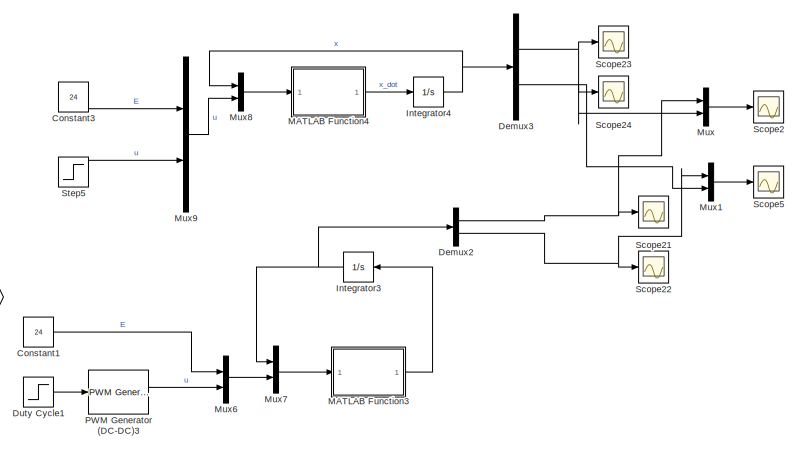
[diagram: root canvas - part 1/2, right side, full height]
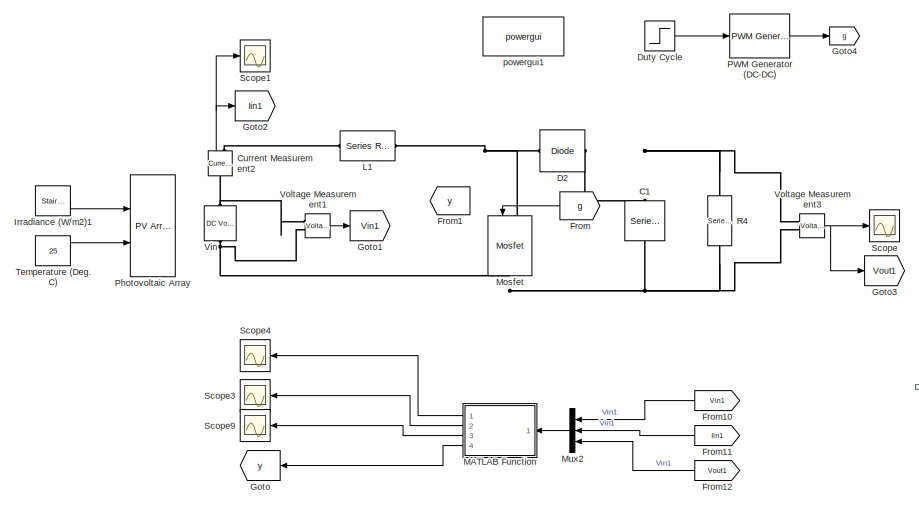
[diagram: root canvas - part 2/2, left side, full height]
MODEL slx_3d6df0cbf0a1
KIND model
CONFIG AbsTol = auto
CONFIG EnableMultiTasking = off
CONFIG FixedStep = auto
CONFIG MaxStep = auto
CONFIG MinStep = auto
CONFIG RelTol = 1e-3
CONFIG SampleTimeConstraint = Unconstrained
CONFIG SolverName = VariableStepAuto
CONFIG StartTime = 0.0
CONFIG StopTime = 10.0
BLOCK [Reference] C1  REF=powerlib/Elements/Series RLC Branch
  NameLocation = left
  Ports = [0, 0, 0, 0, 0, 1, 1]
  SourceBlock = powerlib/Elements/Series RLC Branch
  SourceProductBaseCode = PS
  SourceType = Series RLC Branch
BLOCK [Constant] Constant1
  Value = 24
BLOCK [Constant] Constant3
  Value = 24
BLOCK [Reference] Current Measurement2  REF=powerlib/Measurements/Current Measurement
  NameLocation = right
  Ports = [0, 1, 0, 0, 0, 1, 1]
  SourceBlock = powerlib/Measurements/Current Measurement
  SourceProductBaseCode = PS
  SourceType = Current Measurement
  UserDataPersistent = on
BLOCK [Reference] D2  REF=powerlib/Power
Electronics/Diode
  Ports = [0, 0, 0, 0, 0, 1, 1]
  SourceBlock = powerlib/Power\nElectronics/Diode
  SourceProductBaseCode = PS
  SourceType = Diode
BLOCK [Demux] Demux2
  Outputs = 2
  Ports = [1, 2]
BLOCK [Demux] Demux3
  Outputs = 2
  Ports = [1, 2]
BLOCK [Step] Duty Cycle
  After = .5
  Before = .5
  SampleTime = 0
  Time = .5
BLOCK [Step] Duty Cycle1
  After = .5
  Before = .5
  SampleTime = 0
  Time = .1
BLOCK [From] From
  GotoTag = g
BLOCK [From] From1
  Commented = on
  GotoTag = y
BLOCK [From] From10
  Commented = on
  GotoTag = Vin1
BLOCK [From] From11
  Commented = on
  GotoTag = Iin1
BLOCK [From] From12
  Commented = on
  GotoTag = Vout1
BLOCK [Goto] Goto
  Commented = on
  GotoTag = y
BLOCK [Goto] Goto1
  Commented = on
  GotoTag = Vin1
BLOCK [Goto] Goto2
  Commented = on
  GotoTag = Iin1
BLOCK [Goto] Goto3
  Commented = on
  GotoTag = Vout1
BLOCK [Goto] Goto4
  GotoTag = g
BLOCK [Integrator] Integrator3
  InitialCondition = [0 0]
  Ports = [1, 1]
BLOCK [Integrator] Integrator4
  InitialCondition = [0 0]
  Ports = [1, 1]
BLOCK [Reference] Irradiance (W//m2)1  REF=powerlib_meascontrol/Pulse & Signal
Generators/Stair
Generator
  Commented = on
  NameLocation = top
  Ports = [0, 1]
  SourceBlock = powerlib_meascontrol/Pulse & Signal\nGenerators/Stair\nGenerator
  SourceProductBaseCode = PS
  SourceType = Stair Generator
BLOCK [Reference] L1  REF=powerlib/Elements/Series RLC Branch
  NameLocation = top
  Ports = [0, 0, 0, 0, 0, 1, 1]
  SourceBlock = powerlib/Elements/Series RLC Branch
  SourceProductBaseCode = PS
  SourceType = Series RLC Branch
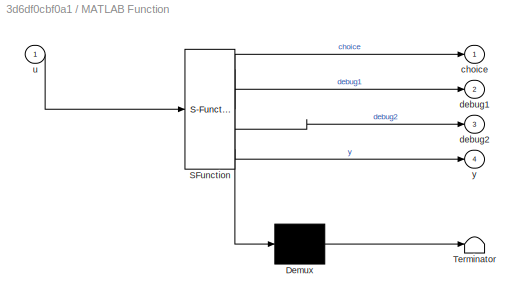
BLOCK [SubSystem] MATLAB Function
  Commented = on
  ErrorFcn = Stateflow.Translate.translate
  PermitHierarchicalResolution = ExplicitOnly
  Ports = [1, 4]
  RequestExecContextInheritance = off
  SFBlockType = MATLAB Function
  SystemSampleTime = 15e-6
  TreatAsAtomicUnit = on
BLOCK [Demux] MATLAB Function/ Demux 
  Outputs = 1
  Ports = [1, 1]
BLOCK [S-Function] MATLAB Function/ SFunction 
  EnableBusSupport = on
  FunctionName = sf_sfun
  PortCounts = [1 5]
  Ports = [1, 5]
  SFcnIsStateOwnerBlock = off
  SFunctionDeploymentMode = off
  Tag = Stateflow S-Function 2
BLOCK [Terminator] MATLAB Function/ Terminator 
BLOCK [Outport] MATLAB Function/choice
BLOCK [Outport] MATLAB Function/debug1
  Port = 2
BLOCK [Outport] MATLAB Function/debug2
  Port = 3
BLOCK [Inport] MATLAB Function/u
BLOCK [Outport] MATLAB Function/y
  Port = 4
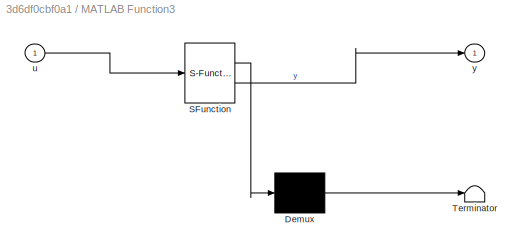
BLOCK [SubSystem] MATLAB Function3
  ErrorFcn = Stateflow.Translate.translate
  PermitHierarchicalResolution = ExplicitOnly
  Ports = [1, 1]
  RequestExecContextInheritance = off
  SFBlockType = MATLAB Function
  TreatAsAtomicUnit = on
BLOCK [Demux] MATLAB Function3/ Demux 
  Outputs = 1
  Ports = [1, 1]
BLOCK [S-Function] MATLAB Function3/ SFunction 
  EnableBusSupport = on
  FunctionName = sf_sfun
  PortCounts = [1 2]
  Ports = [1, 2]
  SFcnIsStateOwnerBlock = off
  SFunctionDeploymentMode = off
  Tag = Stateflow S-Function 4
BLOCK [Terminator] MATLAB Function3/ Terminator 
BLOCK [Inport] MATLAB Function3/u
BLOCK [Outport] MATLAB Function3/y
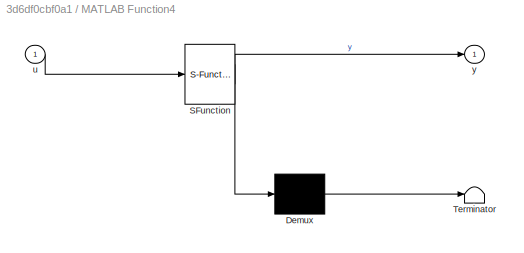
BLOCK [SubSystem] MATLAB Function4
  ErrorFcn = Stateflow.Translate.translate
  PermitHierarchicalResolution = ExplicitOnly
  Ports = [1, 1]
  RequestExecContextInheritance = off
  SFBlockType = MATLAB Function
  TreatAsAtomicUnit = on
BLOCK [Demux] MATLAB Function4/ Demux 
  Outputs = 1
  Ports = [1, 1]
BLOCK [S-Function] MATLAB Function4/ SFunction 
  EnableBusSupport = on
  FunctionName = sf_sfun
  PortCounts = [1 2]
  Ports = [1, 2]
  SFcnIsStateOwnerBlock = off
  SFunctionDeploymentMode = off
  Tag = Stateflow S-Function 5
BLOCK [Terminator] MATLAB Function4/ Terminator 
BLOCK [Inport] MATLAB Function4/u
BLOCK [Outport] MATLAB Function4/y
BLOCK [Reference] Mosfet  REF=powerlib/Power
Electronics/Mosfet
  NameLocation = left
  Ports = [1, 0, 0, 0, 0, 1, 1]
  SourceBlock = powerlib/Power\nElectronics/Mosfet
  SourceProductBaseCode = PS
  SourceType = Mosfet
BLOCK [Mux] Mux
  DisplayOption = bar
  Inputs = 2
  Ports = [2, 1]
BLOCK [Mux] Mux1
  DisplayOption = bar
  Inputs = 2
  Ports = [2, 1]
BLOCK [Mux] Mux2
  Commented = on
  DisplayOption = bar
  Inputs = 3
  Ports = [3, 1]
BLOCK [Mux] Mux6
  DisplayOption = bar
  Inputs = 2
  Ports = [2, 1]
BLOCK [Mux] Mux7
  DisplayOption = bar
  Inputs = 2
  Ports = [2, 1]
BLOCK [Mux] Mux8
  DisplayOption = bar
  Inputs = 2
  Ports = [2, 1]
BLOCK [Mux] Mux9
  DisplayOption = bar
  Inputs = 2
  Ports = [2, 1]
BLOCK [Reference] PWM Generator (DC-DC)  REF=powerlib_meascontrol/Pulse & Signal
Generators/PWM Generator
(DC-DC)
  NameLocation = top
  Ports = [1, 1]
  SourceBlock = powerlib_meascontrol/Pulse & Signal\nGenerators/PWM Generator\n(DC-DC)
  SourceProductBaseCode = PS
  SourceType = PWM Generator (DC-DC)
BLOCK [Reference] PWM Generator (DC-DC)3  REF=powerlib_meascontrol/Pulse & Signal
Generators/PWM Generator
(DC-DC)
  NameLocation = top
  Ports = [1, 1]
  SourceBlock = powerlib_meascontrol/Pulse & Signal\nGenerators/PWM Generator\n(DC-DC)
  SourceProductBaseCode = PS
  SourceType = PWM Generator (DC-DC)
BLOCK [Reference] Photovoltaic Array  REF=re_lib/Solar/PV Array
  AttributesFormatString = %<ModuleName>\n%<Nser>-module string\n%<Npar> parallel strings
  Commented = on
  Ports = [2, 1, 0, 0, 0, 0, 2]
  SourceBlock = re_lib/Solar/PV Array
  SourceProductBaseCode = PS
  SourceType = PV array
BLOCK [Reference] R4  REF=powerlib/Elements/Series RLC Branch
  NameLocation = left
  Ports = [0, 0, 0, 0, 0, 1, 1]
  SourceBlock = powerlib/Elements/Series RLC Branch
  SourceProductBaseCode = PS
  SourceType = Series RLC Branch
BLOCK [Scope] Scope
  Floating = off
  NumInputPorts = 1
  Ports = [1]
  ScopeSpecificationString = Simulink.scopes.TimeScopeBlockCfg('CurrentConfiguration', extmgr.ConfigurationSet(extmgr.Configuration('Core','General UI',true),extmgr.Configuration('Core','Source UI',true),extmgr.Configuration('Sources','WiredSimulink',true),extmgr.Configuration('Visuals','Time Domain',true,'SerializedDisplays',{struct('MinYLimReal','-7.73213','MaxYLimReal','69.5892','YLabelReal','','MinYLimMag','0.00000','MaxY...<+1394ch>
BLOCK [Scope] Scope1
  Floating = off
  NumInputPorts = 1
  Ports = [1]
  ScopeSpecificationString = Simulink.scopes.TimeScopeBlockCfg('CurrentConfiguration', extmgr.ConfigurationSet(extmgr.Configuration('Core','General UI',true),extmgr.Configuration('Core','Source UI',true),extmgr.Configuration('Sources','WiredSimulink',true,'DataLoggingVariableName','ScopeData4'),extmgr.Configuration('Visuals','Time Domain',true,'SerializedDisplays',{struct('MinYLimReal','-6.48257','MaxYLimReal','58.34316','YLa...<+1408ch>
BLOCK [Scope] Scope2
  Floating = off
  NumInputPorts = 1
  Ports = [1]
  ScopeSpecificationString = Simulink.scopes.TimeScopeBlockCfg('CurrentConfiguration', extmgr.ConfigurationSet(extmgr.Configuration('Core','General UI',true),extmgr.Configuration('Core','Source UI',true),extmgr.Configuration('Sources','WiredSimulink',true,'DataLoggingVariableName','ScopeData5'),extmgr.Configuration('Visuals','Time Domain',true,'SerializedDisplays',{struct('MinYLimReal','25.71037','MaxYLimReal','49.13182','YLa...<+1428ch>
BLOCK [Scope] Scope21
  Floating = off
  NumInputPorts = 1
  Ports = [1]
  ScopeSpecificationString = Simulink.scopes.TimeScopeBlockCfg('CurrentConfiguration', extmgr.ConfigurationSet(extmgr.Configuration('Core','General UI',true),extmgr.Configuration('Core','Source UI',true),extmgr.Configuration('Sources','WiredSimulink',true,'DataLoggingVariableName','ScopeData6'),extmgr.Configuration('Visuals','Time Domain',true,'SerializedDisplays',{struct('MinYLimReal','-25.07848','MaxYLimReal','225.70629','Y...<+1475ch>
BLOCK [Scope] Scope22
  Floating = off
  NumInputPorts = 1
  Ports = [1]
  ScopeSpecificationString = Simulink.scopes.TimeScopeBlockCfg('CurrentConfiguration', extmgr.ConfigurationSet(extmgr.Configuration('Core','General UI',true),extmgr.Configuration('Core','Source UI',true),extmgr.Configuration('Sources','WiredSimulink',true,'DataLoggingVariableName','ScopeData7'),extmgr.Configuration('Visuals','Time Domain',true,'SerializedDisplays',{struct('MinYLimReal','109.56834','MaxYLimReal','126.40509','Y...<+1485ch>
BLOCK [Scope] Scope23
  Floating = off
  NumInputPorts = 1
  Ports = [1]
  ScopeSpecificationString = Simulink.scopes.TimeScopeBlockCfg('CurrentConfiguration', extmgr.ConfigurationSet(extmgr.Configuration('Core','General UI',true),extmgr.Configuration('Core','Source UI',true),extmgr.Configuration('Sources','WiredSimulink',true,'DataLoggingVariableName','ScopeData8'),extmgr.Configuration('Visuals','Time Domain',true,'SerializedDisplays',{struct('MinYLimReal','-6.4497','MaxYLimReal','58.04727','YLab...<+1475ch>
BLOCK [Scope] Scope24
  Floating = off
  NumInputPorts = 1
  Ports = [1]
  ScopeSpecificationString = Simulink.scopes.TimeScopeBlockCfg('CurrentConfiguration', extmgr.ConfigurationSet(extmgr.Configuration('Core','General UI',true),extmgr.Configuration('Core','Source UI',true),extmgr.Configuration('Sources','WiredSimulink',true,'DataLoggingVariableName','ScopeData9'),extmgr.Configuration('Visuals','Time Domain',true,'SerializedDisplays',{struct('MinYLimReal','71.11793','MaxYLimReal','88.99573','YLa...<+1481ch>
BLOCK [Scope] Scope3
  Commented = on
  Floating = off
  NumInputPorts = 1
  Ports = [1]
  ScopeSpecificationString = Simulink.scopes.TimeScopeBlockCfg('CurrentConfiguration', extmgr.ConfigurationSet(extmgr.Configuration('Core','General UI',true),extmgr.Configuration('Core','Source UI',true),extmgr.Configuration('Sources','WiredSimulink',true,'DataLoggingVariableName','ScopeData1','DataLogging',true,'DataLoggingSaveFormat','Array'),extmgr.Configuration('Visuals','Time Domain',true,'SerializedDisplays',{struct('Mi...<+1511ch>
BLOCK [Scope] Scope4
  Commented = on
  Floating = off
  NumInputPorts = 1
  Ports = [1]
  ScopeSpecificationString = Simulink.scopes.TimeScopeBlockCfg('CurrentConfiguration', extmgr.ConfigurationSet(extmgr.Configuration('Core','General UI',true),extmgr.Configuration('Core','Source UI',true),extmgr.Configuration('Sources','WiredSimulink',true,'DataLoggingVariableName','ScopeData2'),extmgr.Configuration('Visuals','Time Domain',true,'SerializedDisplays',{struct('MinYLimReal','3.875','MaxYLimReal','5.125','YLabelRea...<+1436ch>
BLOCK [Scope] Scope5
  Floating = off
  NumInputPorts = 1
  Ports = [1]
  ScopeSpecificationString = Simulink.scopes.TimeScopeBlockCfg('CurrentConfiguration', extmgr.ConfigurationSet(extmgr.Configuration('Core','General UI',true),extmgr.Configuration('Core','Source UI',true),extmgr.Configuration('Sources','WiredSimulink',true,'DataLoggingVariableName','ScopeData10'),extmgr.Configuration('Visuals','Time Domain',true,'SerializedDisplays',{struct('MinYLimReal','42.09958','MaxYLimReal','56.06928','YL...<+1429ch>
BLOCK [Scope] Scope9
  Commented = on
  Floating = off
  NumInputPorts = 1
  Ports = [1]
  ScopeSpecificationString = Simulink.scopes.TimeScopeBlockCfg('CurrentConfiguration', extmgr.ConfigurationSet(extmgr.Configuration('Core','General UI',true),extmgr.Configuration('Core','Source UI',true),extmgr.Configuration('Sources','WiredSimulink',true,'DataLoggingVariableName','ScopeData3'),extmgr.Configuration('Visuals','Time Domain',true,'SerializedDisplays',{struct('MinYLimReal','-0.2343','MaxYLimReal','-0.02687','YLab...<+1452ch>
BLOCK [Step] Step5
  After = .5
  Before = .5
  SampleTime = 0
  Time = .1
BLOCK [Constant] Temperature (Deg. C)
  Commented = on
  Value = 25
BLOCK [Reference] Vin  REF=powerlib/Electrical
Sources/DC Voltage Source
  NameLocation = right
  Ports = [0, 0, 0, 0, 0, 1, 1]
  SourceBlock = powerlib/Electrical\nSources/DC Voltage Source
  SourceProductBaseCode = PS
  SourceType = DC Voltage Source
BLOCK [Reference] Voltage Measurement1  REF=powerlib/Measurements/Voltage Measurement
  Ports = [0, 1, 0, 0, 0, 2]
  SourceBlock = powerlib/Measurements/Voltage Measurement
  SourceProductBaseCode = PS
  SourceType = Voltage Measurement
  UserDataPersistent = on
BLOCK [Reference] Voltage Measurement3  REF=powerlib/Measurements/Voltage Measurement
  Ports = [0, 1, 0, 0, 0, 2]
  SourceBlock = powerlib/Measurements/Voltage Measurement
  SourceProductBaseCode = PS
  SourceType = Voltage Measurement
  UserDataPersistent = on
BLOCK [Reference] powergui1  REF=powerlib/powergui
  Ports = []
  Priority = 1
  SourceBlock = powerlib/powergui
  SourceProductBaseCode = PS
  SourceType = PSB option menu block
LINE Constant1:1 -> Mux6:1
LINE Constant3:1 -> Mux9:1
NET Current Measurement2:1 -> Goto2:1, Scope1:1
NET Demux2:1 -> Mux:1, Scope21:1
NET Demux2:2 -> Mux1:1, Scope22:1
NET Demux3:1 -> Mux:2, Scope23:1
NET Demux3:2 -> Mux1:2, Scope24:1
LINE Duty Cycle1:1 -> PWM Generator (DC-DC)3:1
LINE Duty Cycle:1 -> PWM Generator (DC-DC):1
LINE From10:1 -> Mux2:1
LINE From11:1 -> Mux2:2
LINE From12:1 -> Mux2:3
LINE From:1 -> Mosfet:1
NET Integrator3:1 -> Demux2:1, Mux7:1
NET Integrator4:1 -> Demux3:1, Mux8:1
LINE Irradiance (W//m2)1:1 -> Photovoltaic Array:1
LINE MATLAB Function3:1 -> Integrator3:1
LINE MATLAB Function4:1 -> Integrator4:1
LINE MATLAB Function:1 -> Scope4:1
LINE MATLAB Function:2 -> Scope3:1
LINE MATLAB Function:3 -> Scope9:1
LINE MATLAB Function:4 -> Goto:1
LINE Mux1:1 -> Scope5:1
LINE Mux2:1 -> MATLAB Function:1
LINE Mux6:1 -> Mux7:2
LINE Mux7:1 -> MATLAB Function3:1
LINE Mux8:1 -> MATLAB Function4:1
LINE Mux9:1 -> Mux8:2
LINE Mux:1 -> Scope2:1
LINE PWM Generator (DC-DC)3:1 -> Mux6:2
LINE PWM Generator (DC-DC):1 -> Goto4:1
LINE Step5:1 -> Mux9:2
LINE Temperature (Deg. C):1 -> Photovoltaic Array:2
LINE Voltage Measurement1:1 -> Goto1:1
NET Voltage Measurement3:1 -> Goto3:1, Scope:1
PNET net1: C1:LConn1 -- D2:RConn1 -- R4:LConn1 -- Voltage Measurement3:LConn1
PNET net2: C1:RConn1 -- Mosfet:RConn1 -- R4:RConn1 -- Vin:LConn1 -- Voltage Measurement1:LConn2 -- Voltage Measurement3:LConn2
PNET net3: Current Measurement2:LConn1 -- Vin:RConn1 -- Voltage Measurement1:LConn1
PLINE Current Measurement2:RConn1 -- L1:LConn1
PNET net4: D2:LConn1 -- L1:RConn1 -- Mosfet:LConn1
note: NET lines group one-source signal fan-out (src -> all destinations, sorted); 1:1 wires keep LINE; PNET lines group multi-terminal physical nets as a canonical sorted terminal list (undirected conserving connections); 2-terminal nets keep the pairwise PLINE form
CHART MATLAB Function states=1 transitions=1
  STATE_LABEL 'eML_blk_kernel()'
  STATE_LABEL "SCRIPT:\nfunction [choice, debug1, debug2, y]= fcn(u)\nVpv=u(1);\nIpv=u(2);\nVout=u(3);\n\n%This module contains the MPC-MPPT Control Algorithm\n\n%The MPC module follows the flow chart of Fig. 8 in Referenced Research Paper\n\n%This MATLAB fn block's settings have been changed to have a sampling rate\n%of 15uS instead of being continous sample mode\n\n\n%prevent crazy simulation transients from breaking the al...<+2064ch>"
CHART MATLAB Function3 states=1 transitions=1
  STATE_LABEL 'eML_blk_kernel()'
  STATE_LABEL 'SCRIPT:\nfunction y = fcn(u)\nX=u(1:2);\nE=u(3);\nu=u(4);\n% parameters:\nC=200e-6;\nL=250e-6;\nR=3;\n\n% Compact form\nA=[ 0    -1/L ;\n   1/C  -1/(C*R)];\n\nB=[0   1/L;\n   -1/C  0];\n\nb=[0; 0];\n\nd=[E/L; 0];\n\ny = A*X+(B*X+ b)*u+d;\n'
CHART MATLAB Function4 states=1 transitions=1
  STATE_LABEL 'eML_blk_kernel()'
  STATE_LABEL 'SCRIPT:\nfunction y = fcn(u)\n\nX=u(1:2);\nE=u(3);\nu=u(4);\n% parameters:\nC=200e-6;\nL=250e-6;\nR=3;\n\n%%%begin PWM detector\n% persistent D; \n% if isempty(D)\n%     D = 0;\n% end\n% \n% persistent T_on; \n% if isempty(T_on)\n%     T_on = 0;\n% end\n% \n% persistent T_off; \n% if isempty(T_off)\n%     T_off = 0;\n% end\n% \n% persistent u_prev; \n% if isempty(u_prev)\n%     u_prev = 0;\n% end\n% \n% persistent Ts; \n% if isem...<+437ch>'
CHART  states=0 transitions=0
CHART  states=0 transitions=0
CHART  states=0 transitions=0
